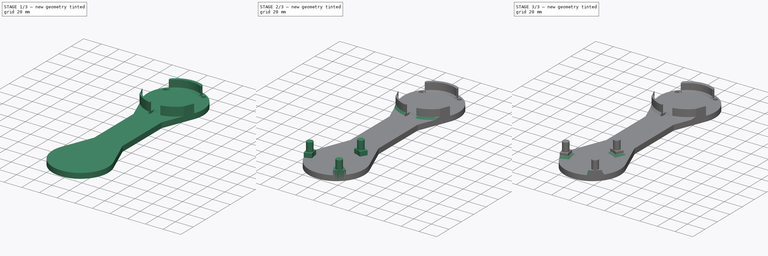
[diagram: build sequence overview — one tinted view per stage of 3, left to right]
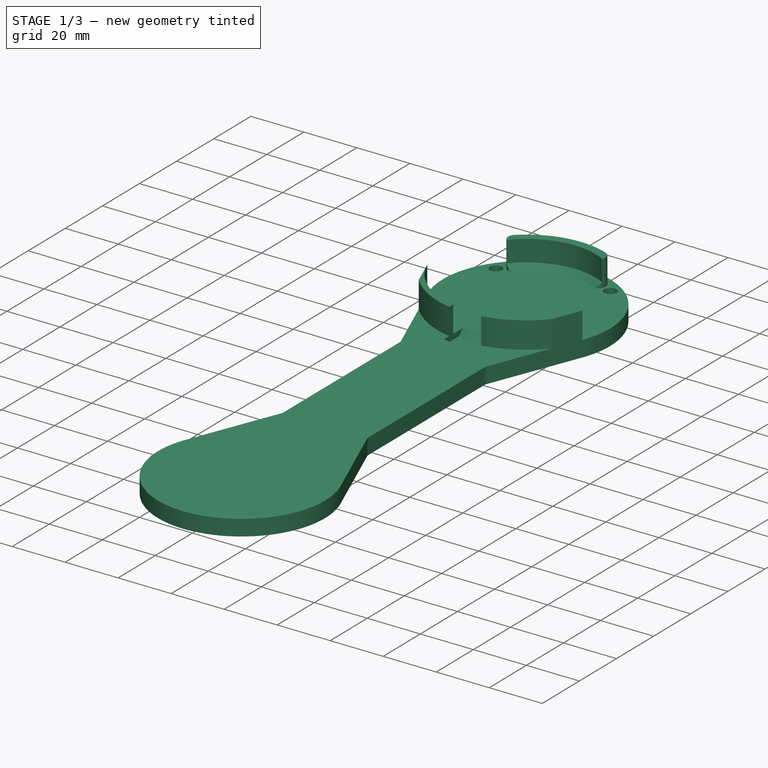
[diagram: stage 1 of 3 — iso view after this stage's code; geometry added in this stage tinted green]
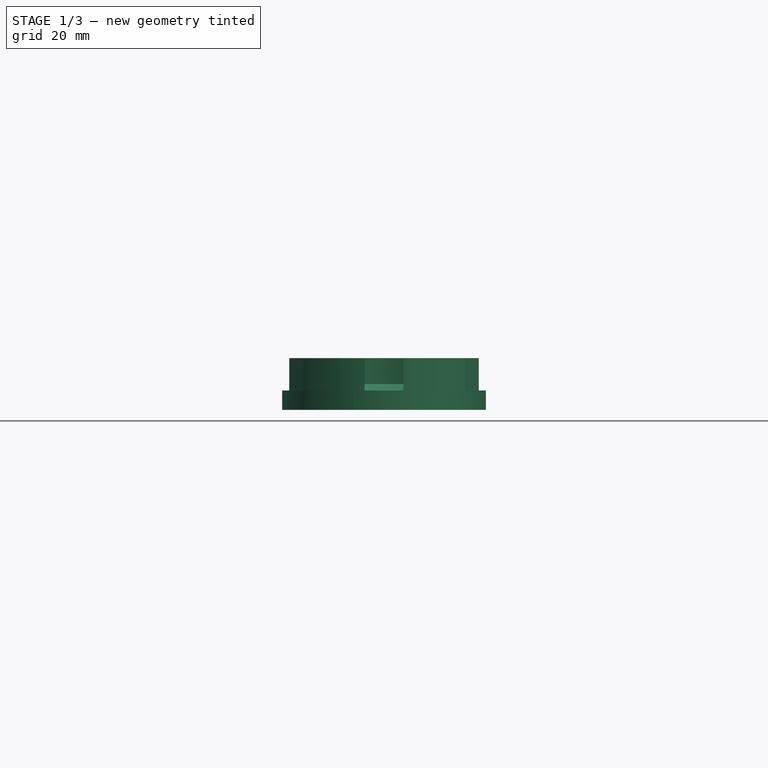
[diagram: stage 1 of 3 — front view after this stage's code; geometry added in this stage tinted green]
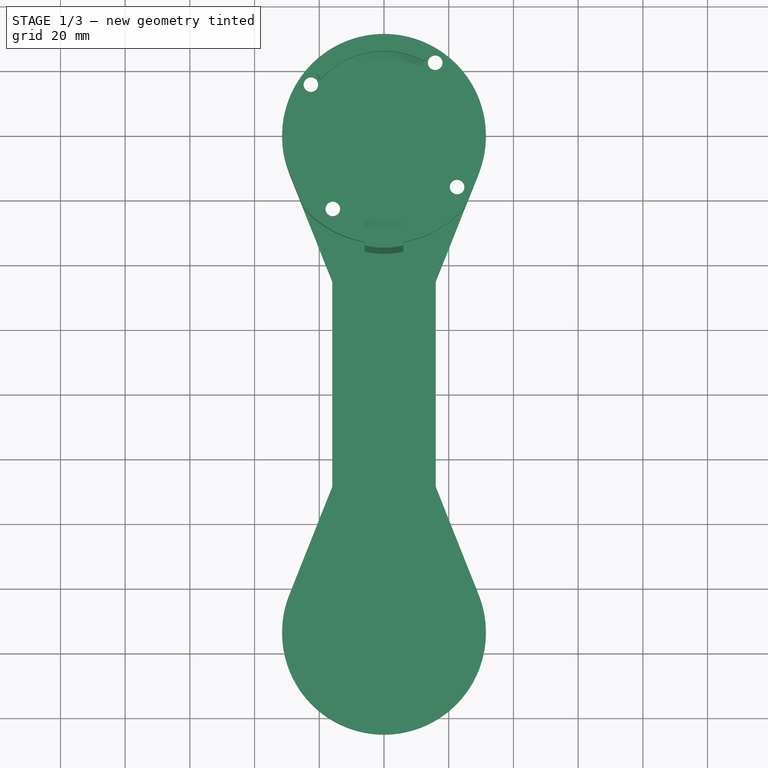
[diagram: stage 1 of 3 — top view after this stage's code; geometry added in this stage tinted green]
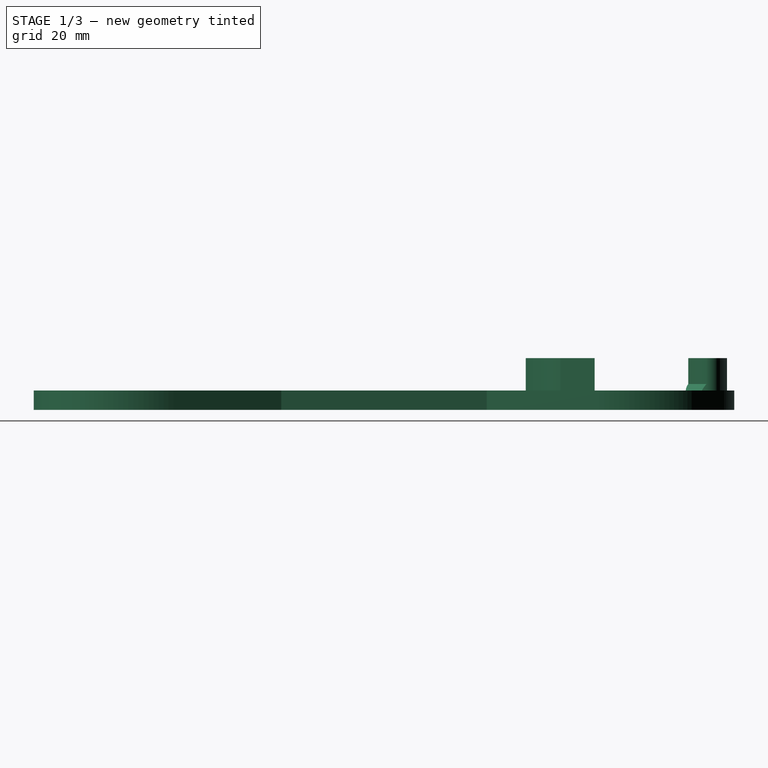
[diagram: stage 1 of 3 — right view after this stage's code; geometry added in this stage tinted green]
FCSTD DOCUMENT  (FreeCAD 1.0R39109 (Git))
Label: LEG Dev Platform
License: All rights reserved
LicenseURL: https://en.wikipedia.org/wiki/All_rights_reserved
objects: Sketcher::SketchObject×9, PartDesign::Chamfer×8, PartDesign::Pad×5, PartDesign::Pocket×3, PartDesign::Body×1, PartDesign::Plane×1
note: 68 computed .brp shape members not serialized (recipe doc carries the construction recipe); baked Part::Feature solids carry a one-line shape summary decoded from their .brp

FEATURE [Sketcher::SketchObject] Sketch
  ArcFitTolerance = 1e-06
  AttachmentSupport = -> [XY_Plane]
  FullyConstrained = true
  MakeInternals = false
  MapMode = 5
  sketch-geometry (20):
    g0: ArcOfCircle CenterX=0 CenterY=0 CenterZ=0 NormalX=0 NormalY=0 NormalZ=1 AngleXU=0 Radius=31.5 StartAngle=5.90458 EndAngle=9.80338
    g1: LineSegment StartX=-29.2692 StartY=-11.6432 StartZ=0 EndX=-16 EndY=-45 EndZ=0
    g2: LineSegment StartX=29.2692 StartY=-11.6432 StartZ=0 EndX=16 EndY=-45 EndZ=0
    g3: LineSegment [constr] StartX=-16 StartY=-45 StartZ=0 EndX=16 EndY=-45 EndZ=0
    g4: LineSegment [constr] StartX=-29.2692 StartY=-11.6432 StartZ=0 EndX=29.2692 EndY=-11.6432 EndZ=0
    g5: LineSegment StartX=-16 StartY=-45 StartZ=0 EndX=-16 EndY=-108.5 EndZ=0
    g6: LineSegment [constr] StartX=-16 StartY=-108.5 StartZ=0 EndX=16 EndY=-108.5 EndZ=0
    g7: LineSegment StartX=16 StartY=-108.5 StartZ=0 EndX=16 EndY=-45 EndZ=0
    g8: Circle [constr] CenterX=0 CenterY=0 CenterZ=0 NormalX=0 NormalY=0 NormalZ=1 AngleXU=0 Radius=27.5772
    g9: Circle CenterX=-22.5899 CenterY=15.8176 CenterZ=0 NormalX=0 NormalY=0 NormalZ=1 AngleXU=0 Radius=2.25
    g10: Circle CenterX=-15.8176 CenterY=-22.5899 CenterZ=0 NormalX=0 NormalY=0 NormalZ=1 AngleXU=0 Radius=2.25
    g11: Circle CenterX=22.5899 CenterY=-15.8176 CenterZ=0 NormalX=0 NormalY=0 NormalZ=1 AngleXU=0 Radius=2.25
    g12: Circle CenterX=15.8176 CenterY=22.5899 CenterZ=0 NormalX=0 NormalY=0 NormalZ=1 AngleXU=0 Radius=2.25
    g13: LineSegment [constr] StartX=-22.5899 StartY=15.8176 StartZ=0 EndX=15.8176 EndY=22.5899 EndZ=0
    g14: LineSegment [constr] StartX=15.8176 StartY=22.5899 StartZ=0 EndX=22.5899 EndY=-15.8176 EndZ=0
    g15: LineSegment [constr] StartX=-15.8176 StartY=-22.5899 StartZ=0 EndX=22.5899 EndY=-15.8176 EndZ=0
    g16: LineSegment [constr] StartX=-15.8176 StartY=-22.5899 StartZ=0 EndX=-22.5899 EndY=15.8176 EndZ=0
    g17: ArcOfCircle CenterX=0 CenterY=-153.5 CenterZ=0 NormalX=0 NormalY=0 NormalZ=1 AngleXU=0 Radius=31.5 StartAngle=2.76299 EndAngle=6.66179
    g18: LineSegment StartX=16 StartY=-108.5 StartZ=0 EndX=29.2692 EndY=-141.857 EndZ=0
    g19: LineSegment StartX=-16 StartY=-108.5 StartZ=0 EndX=-29.2692 EndY=-141.857 EndZ=0
  constraints (49):
    c: Radius(g0) = 31.5
    c: Coincident(g0,g-1)
    c: Coincident(g3,g1)
    c: Coincident(g3,g2)
    c: Horizontal(g3)
    c: Distance(g-1,g3) = 45
    c: Distance(g1,g2) = 32
    c: Coincident(g4,g0)
    c: Coincident(g4,g0)
    c: Horizontal(g4)
    c: Tangent(g1,g0) = -1.5708
    c: Tangent(g2,g0) = 1.5708
    c: Coincident(g5,g1)
    c: Coincident(g6,g5)
    c: Coincident(g7,g6)
    c: Coincident(g7,g2)
    c: Vertical(g7)
    c: Vertical(g5)
    c: Horizontal(g6)
    c: Distance(g6,g3) = 63.5
    c: Coincident(g8,g0)
    c: PointOnObject(g9,g8)
    c: PointOnObject(g10,g8)
    c: PointOnObject(g11,g8)
    c: PointOnObject(g12,g8)
    c: Diameter(g12) = 4.5
    c: Equal(g12,g9)
    c: Equal(g9,g10)
    c: Equal(g10,g11)
    c: Coincident(g14,g12)
    c: Coincident(g14,g11)
    c: Coincident(g16,g10)
    c: Coincident(g16,g9)
    c: Perpendicular(g13,g16)
    c: Coincident(g15,g10)
    c: Perpendicular(g16,g15)
    c: Coincident(g15,g11)
    c: Coincident(g13,g9)
    c: Coincident(g13,g12)
    c: Equal(g16,g13)
    c: Distance(g12,g11) = 39
    c: Angle(g4,g15) = 0.174533
    c: PointOnObject(g17,g-2)
    c: Coincident(g18,g6)
    c: Coincident(g19,g5)
    c: Tangent(g18,g17) = 1.5708
    c: Tangent(g19,g17) = -1.5708
    c: Equal(g0,g17)
    c: Equal(g1,g19)
FEATURE [PartDesign::Pad] Pad
  Direction = (0,0,1)
  Length = 6
  Length2 = 10
  Profile = -> Sketch
  ReferenceAxis = -> Sketch [N_Axis]
  Refine = true
  Suppressed = false
  Type = 0
FEATURE [Sketcher::SketchObject] Sketch001
  ArcFitTolerance = 1e-06
  AttachmentSupport = -> [Pad]
  ExternalGeometry = -> [Pad]
  FullyConstrained = true
  MakeInternals = false
  MapMode = 5
  Placement = pos=(0,0,6) rot=(0,0,1;0rad)
  sketch-geometry (8):
    g0: Circle [constr] CenterX=0 CenterY=0 CenterZ=0 NormalX=0 NormalY=0 NormalZ=1 AngleXU=0 Radius=31.5
    g1: LineSegment StartX=-6 StartY=-25.8118 StartZ=0 EndX=-6 EndY=-35.8118 EndZ=0
    g2: LineSegment StartX=6 StartY=-25.8118 StartZ=0 EndX=6 EndY=-35.8118 EndZ=0
    g3: LineSegment [constr] StartX=0 StartY=-26.5 StartZ=0 EndX=0 EndY=-36.5 EndZ=0
    g4: Circle [constr] CenterX=0 CenterY=0 CenterZ=0 NormalX=0 NormalY=0 NormalZ=1 AngleXU=0 Radius=26.5
    g5: LineSegment [constr] StartX=-6 StartY=-31.5 StartZ=0 EndX=6 EndY=-31.5 EndZ=0
    g6: ArcOfCircle CenterX=5.3e-15 CenterY=-6.2e-15 CenterZ=0 NormalX=0 NormalY=0 NormalZ=1 AngleXU=0 Radius=26.5 StartAngle=4.48399 EndAngle=4.94078
    g7: ArcOfCircle CenterX=8.2e-15 CenterY=-10 CenterZ=0 NormalX=0 NormalY=0 NormalZ=1 AngleXU=0 Radius=26.5 StartAngle=4.48399 EndAngle=4.94078
  constraints (24):
    c: Coincident(g0,g-1)
    c: Vertical(g1)
    c: Vertical(g2)
    c: Symmetric(g2,g1,g-2)
    c: PointOnObject(g3,g-2)
    c: PointOnObject(g3,g-2)
    c: Equal(g2,g3)
    c: Equal(g3,g1)
    c: Coincident(g4,g0)
    c: PointOnObject(g3,g4)
    c: PointOnObject(g2,g4)
    c: Tangent(g5,g0)
    c: Symmetric(g3,g3,g5)
    c: Distance(g0,g4) = 5
    c: Distance(g2,g1) = 12
    c: Coincident(g6,g2)
    c: Coincident(g6,g1)
    c: PointOnObject(g3,g6)
    c: Coincident(g7,g2)
    c: Coincident(g7,g1)
    c: PointOnObject(g3,g7)
    c: PointOnObject(g5,g2)
    c: PointOnObject(g5,g1)
    c: Tangent(g0,g-3)
FEATURE [PartDesign::Pocket] Pocket
  BaseFeature = -> Pad
  Direction = (0,0,-1)
  Length = 2
  Length2 = 5
  Profile = -> Sketch001
  ReferenceAxis = -> Sketch001 [N_Axis]
  Refine = true
  Suppressed = false
  Type = 0
FEATURE [PartDesign::Chamfer] Chamfer
  Angle = 45
  Base = -> Pocket [Edge48,Edge45]
  BaseFeature = -> Pocket
  ChamferType = 0
  FlipDirection = false
  Refine = true
  Size = 1.95
  Size2 = 1
  SupportTransform = false
  Suppressed = false
  UseAllEdges = false
FEATURE [Sketcher::SketchObject] Sketch002
  ArcFitTolerance = 1e-06
  AttachmentSupport = -> [Chamfer]
  ExternalGeometry = -> [Chamfer]
  FullyConstrained = true
  MakeInternals = false
  MapMode = 5
  Placement = pos=(0,0,0) rot=(1,0,0;3.14159rad)
  sketch-geometry (4):
    g0: Circle CenterX=-15.8176 CenterY=22.5899 CenterZ=0 NormalX=0 NormalY=0 NormalZ=1 AngleXU=0 Radius=3.5
    g1: Circle CenterX=22.5899 CenterY=15.8176 CenterZ=0 NormalX=0 NormalY=0 NormalZ=1 AngleXU=0 Radius=3.5
    g2: Circle CenterX=15.8176 CenterY=-22.5899 CenterZ=0 NormalX=0 NormalY=0 NormalZ=1 AngleXU=0 Radius=3.5
    g3: Circle CenterX=-22.5899 CenterY=-15.8176 CenterZ=0 NormalX=0 NormalY=0 NormalZ=1 AngleXU=0 Radius=3.5
  constraints (8):
    c: Diameter(g1) = 7
    c: Equal(g1,g2)
    c: Equal(g2,g3)
    c: Equal(g3,g0)
    c: Coincident(g3,g-6)
    c: Coincident(g0,g-3)
    c: Coincident(g1,g-4)
    c: Coincident(g2,g-5)
FEATURE [PartDesign::Pocket] Pocket001
  BaseFeature = -> Chamfer
  Direction = (0,0,1)
  Length = 4
  Length2 = 5
  Profile = -> Sketch002
  ReferenceAxis = -> Sketch002 [N_Axis]
  Refine = true
  Suppressed = false
  Type = 0
FEATURE [Sketcher::SketchObject] Sketch003
  ArcFitTolerance = 1e-06
  AttachmentSupport = -> [Pocket001]
  ExternalGeometry = -> [Pocket001]
  FullyConstrained = true
  MakeInternals = false
  MapMode = 5
  Placement = pos=(0,0,6) rot=(0,0,1;0rad)
  sketch-geometry (6):
    g0: LineSegment [constr] StartX=-16 StartY=-45 StartZ=0 EndX=16 EndY=-45 EndZ=0
    g1: LineSegment [constr] StartX=16 StartY=-108.5 StartZ=0 EndX=-16 EndY=-108.5 EndZ=0
    g2: LineSegment StartX=-7.75 StartY=-45 StartZ=0 EndX=-7.75 EndY=-108.5 EndZ=0
    g3: LineSegment StartX=-7.75 StartY=-108.5 StartZ=0 EndX=7.75 EndY=-108.5 EndZ=0
    g4: LineSegment StartX=7.75 StartY=-108.5 StartZ=0 EndX=7.75 EndY=-45 EndZ=0
    g5: LineSegment StartX=7.75 StartY=-45 StartZ=0 EndX=-7.75 EndY=-45 EndZ=0
  constraints (15):
    c: Coincident(g0,g-4)
    c: Coincident(g0,g-3)
    c: Coincident(g1,g-5)
    c: Coincident(g1,g-6)
    c: Coincident(g2,g3)
    c: Coincident(g3,g4)
    c: Coincident(g4,g5)
    c: Coincident(g5,g2)
    c: Vertical(g2)
    c: Vertical(g4)
    c: Horizontal(g3)
    c: Distance(g2,g4) = 15.5
    c: PointOnObject(g2,g0)
    c: PointOnObject(g3,g1)
    c: Symmetric(g4,g2,g-2)
FEATURE [Sketcher::SketchObject] Sketch005
  ArcFitTolerance = 1e-06
  AttachmentSupport = -> [Pocket001]
  ExternalGeometry = -> [Pocket001]
  FullyConstrained = true
  MakeInternals = false
  MapMode = 5
  Placement = pos=(0,0,6) rot=(0,0,1;0rad)
  sketch-geometry (17):
    g0: Circle [constr] CenterX=0 CenterY=0 CenterZ=0 NormalX=0 NormalY=0 NormalZ=1 AngleXU=0 Radius=31.5
    g1: ArcOfCircle CenterX=0 CenterY=0 CenterZ=0 NormalX=0 NormalY=0 NormalZ=1 AngleXU=0 Radius=33.5 StartAngle=4.89247 EndAngle=5.55729
    g2: ArcOfCircle CenterX=0 CenterY=0 CenterZ=0 NormalX=0 NormalY=0 NormalZ=1 AngleXU=0 Radius=33.5 StartAngle=3.86749 EndAngle=4.53231
    g3: ArcOfCircle CenterX=0.0741561 CenterY=0.0894991 CenterZ=0 NormalX=0 NormalY=0 NormalZ=1 AngleXU=0 Radius=31.602 StartAngle=3.52196 EndAngle=4.51898
    g4: ArcOfCircle CenterX=0.0741561 CenterY=0.0894991 CenterZ=0 NormalX=0 NormalY=0 NormalZ=1 AngleXU=0 Radius=31.4644 StartAngle=4.90186 EndAngle=5.90107
    g5: LineSegment StartX=-29.2692 StartY=-11.6432 StartZ=0 EndX=-25.0548 EndY=-22.2375 EndZ=0
    g6: LineSegment StartX=-6 StartY=-30.9233 StartZ=0 EndX=-6 EndY=-32.9583 EndZ=0
    g7: LineSegment StartX=6 StartY=-30.8118 StartZ=0 EndX=6 EndY=-32.9583 EndZ=0
    g8: LineSegment StartX=29.2692 StartY=-11.6432 StartZ=0 EndX=25.0548 EndY=-22.2375 EndZ=0
    g9: ArcOfCircle CenterX=0 CenterY=0 CenterZ=0 NormalX=0 NormalY=0 NormalZ=1 AngleXU=0 Radius=29.25 StartAngle=1.18742 EndAngle=2.30324
    g10: ArcOfCircle CenterX=-17.5531 CenterY=19.518 CenterZ=0 NormalX=0 NormalY=0 NormalZ=1 AngleXU=0 Radius=3 StartAngle=2.30324 EndAngle=3.98857
    g11: LineSegment [constr] StartX=0 StartY=0 StartZ=0 EndX=-19.5398 EndY=17.2702 EndZ=0
    g12: ArcOfCircle CenterX=9.81894 CenterY=24.3444 CenterZ=0 NormalX=0 NormalY=0 NormalZ=1 AngleXU=0 Radius=3 StartAngle=5.78527 EndAngle=7.4706
    g13: LineSegment [constr] StartX=12.4547 StartY=22.9116 StartZ=0 EndX=0 EndY=0 EndZ=0
    g14: ArcOfCircle CenterX=0 CenterY=0 CenterZ=0 NormalX=0 NormalY=0 NormalZ=1 AngleXU=0 Radius=26.078 StartAngle=1.07288 EndAngle=2.41778
    g15: LineSegment [constr] StartX=12.6983 StartY=23.5022 StartZ=0 EndX=15.8176 EndY=22.5899 EndZ=0
    g16: LineSegment [constr] StartX=-22.5899 StartY=15.8176 StartZ=0 EndX=-19.9707 EndY=17.7418 EndZ=0
  constraints (44):
    c: Coincident(g0,g-1)
    c: PointOnObject(g-3,g0)
    c: Coincident(g1,g0)
    c: PointOnObject(g1,g-4)
    c: PointOnObject(g1,g-6)
    c: Coincident(g2,g0)
    c: PointOnObject(g2,g-7)
    c: PointOnObject(g2,g-5)
    c: Horizontal(g2,g1)
    c: Distance(g1,g0) = 2
    c: Coincident(g4,g3)
    c: Symmetric(g-4,g-4,g4)
    c: Coincident(g4,g-6)
    c: Coincident(g5,g3)
    c: Coincident(g5,g2)
    c: Coincident(g6,g3)
    c: Coincident(g6,g2)
    c: Vertical(g6)
    c: Coincident(g7,g4)
    c: Coincident(g7,g1)
    c: Coincident(g8,g4)
    c: Coincident(g8,g1)
    c: PointOnObject(g3,g0)
    c: Coincident(g3,g-7)
    c: Coincident(g9,g0)
    c: Distance(g9,g0) = 2.25
    c: Tangent(g10,g9) = -1.5708
    c: Radius(g10) = 3
    c: Coincident(g11,g0)
    c: Tangent(g11,g10) = 1.5708
    c: Tangent(g9,g12) = -1.5708
    c: Coincident(g13,g0)
    c: Tangent(g13,g12) = 1.5708
    c: Coincident(g12,g14)
    c: Coincident(g10,g14)
    c: Coincident(g14,g0)
    c: PointOnObject(g15,g12)
    c: Coincident(g15,g-9)
    c: Perpendicular(g12,g15)
    c: Distance(g15,g15) = 3.25
    c: Coincident(g16,g-8)
    c: PointOnObject(g16,g10)
    c: Perpendicular(g10,g16)
    c: Equal(g15,g16)
FEATURE [PartDesign::Pad] Pad002
  BaseFeature = -> Pocket001
  Direction = (0,0,1)
  Length = 10
  Length2 = 10
  Profile = -> Sketch005
  ReferenceAxis = -> Sketch005 [N_Axis]
  Refine = true
  Suppressed = false
  Type = 0
FEATURE [PartDesign::Chamfer] Chamfer003
  Angle = 45
  Base = -> Pad002 [Edge36]
  BaseFeature = -> Pad002
  ChamferType = 0
  FlipDirection = false
  Refine = true
  Size = 2
  Size2 = 1
  SupportTransform = false
  Suppressed = false
  UseAllEdges = false
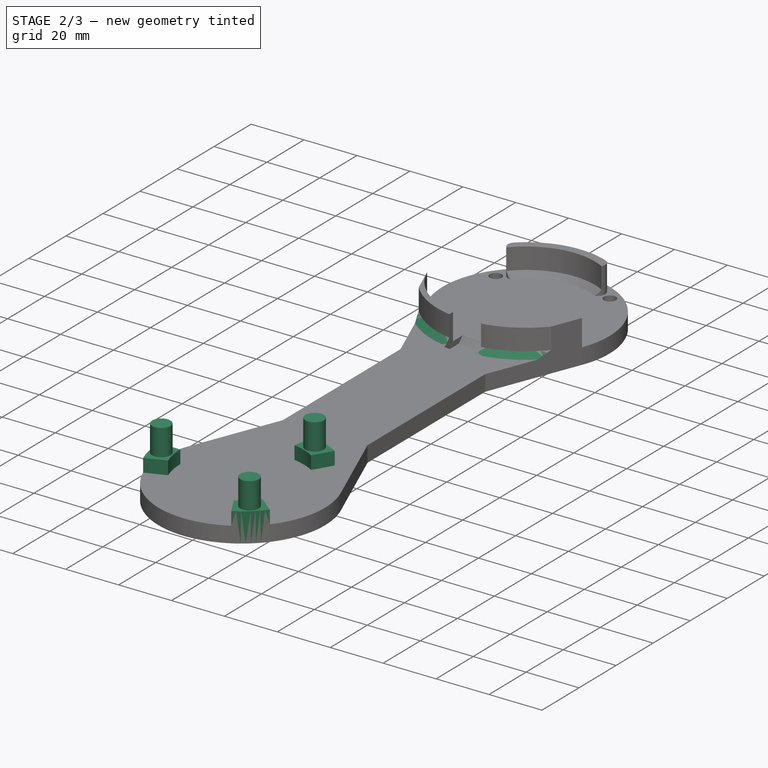
[diagram: stage 2 of 3 — iso view after this stage's code; geometry added in this stage tinted green]
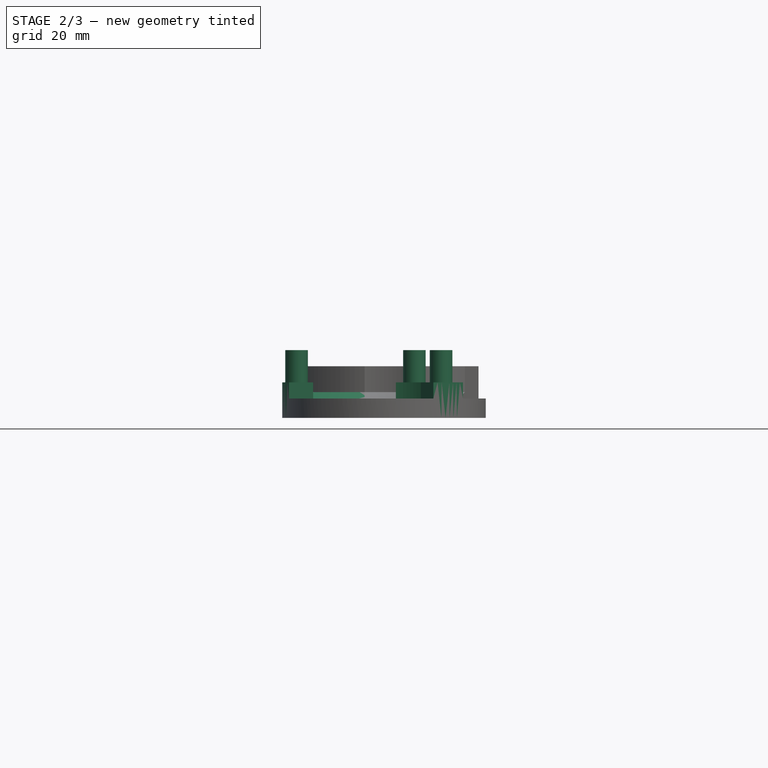
[diagram: stage 2 of 3 — front view after this stage's code; geometry added in this stage tinted green]
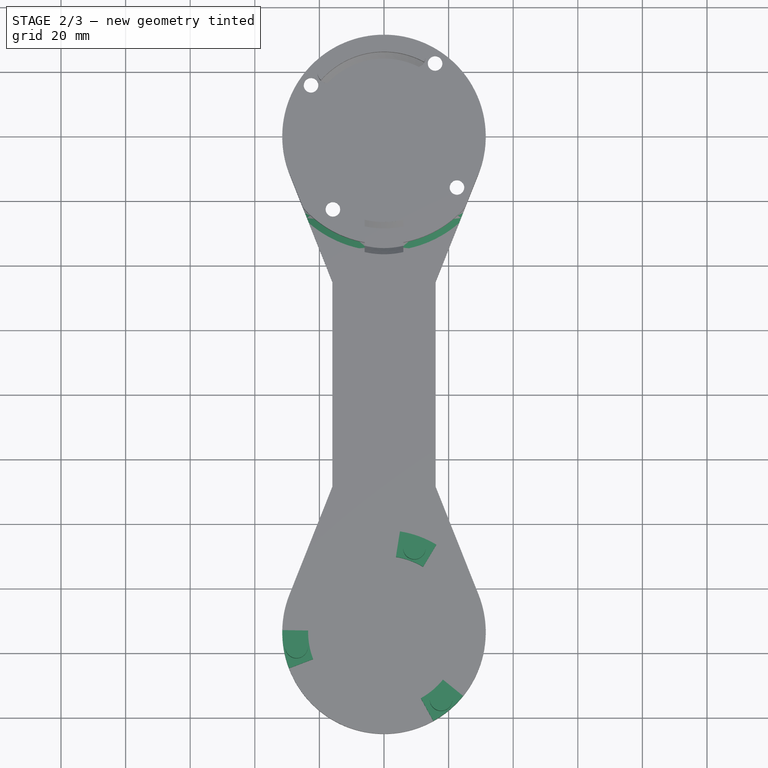
[diagram: stage 2 of 3 — top view after this stage's code; geometry added in this stage tinted green]
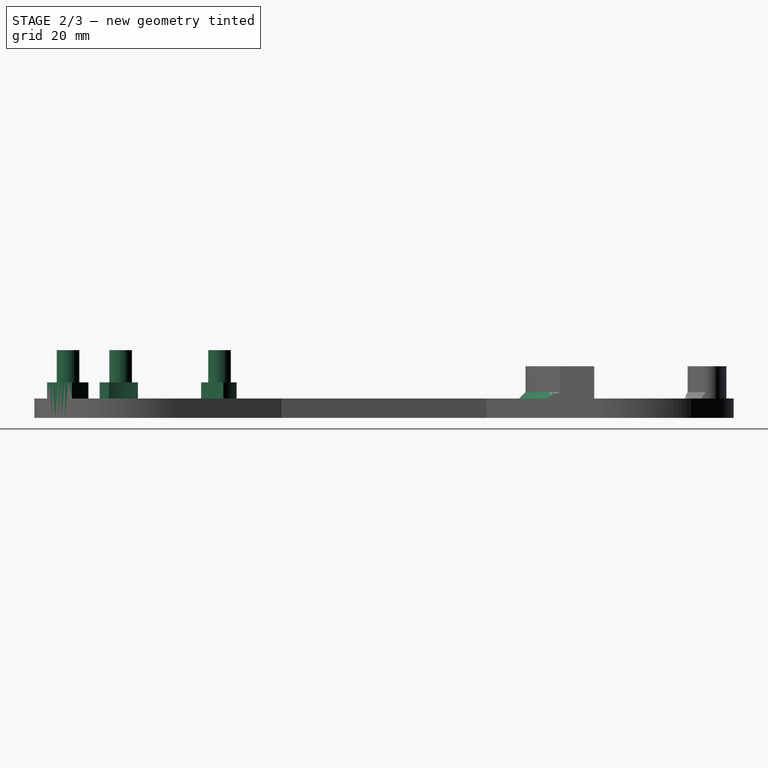
[diagram: stage 2 of 3 — right view after this stage's code; geometry added in this stage tinted green]
FEATURE [PartDesign::Chamfer] Chamfer004
  Angle = 45
  Base = -> Chamfer003 [Edge78,Edge79]
  BaseFeature = -> Chamfer003
  ChamferType = 0
  FlipDirection = false
  Refine = true
  Size = 2
  Size2 = 1
  SupportTransform = false
  Suppressed = false
  UseAllEdges = false
FEATURE [Sketcher::SketchObject] Sketch006
  ArcFitTolerance = 1e-06
  AttachmentSupport = -> [Chamfer004]
  ExternalGeometry = -> [Chamfer004]
  FullyConstrained = true
  MakeInternals = false
  MapMode = 5
  Placement = pos=(0,0,6) rot=(0,0,1;0rad)
  sketch-geometry (9):
    g0: Circle [constr] CenterX=0 CenterY=-153.5 CenterZ=0 NormalX=0 NormalY=0 NormalZ=1 AngleXU=0 Radius=31.5
    g1: Circle [constr] CenterX=0 CenterY=-153.5 CenterZ=0 NormalX=0 NormalY=0 NormalZ=1 AngleXU=0 Radius=27.5
    g2: Circle CenterX=17.6767 CenterY=-174.566 CenterZ=0 NormalX=0 NormalY=0 NormalZ=1 AngleXU=0 Radius=3.5
    g3: Circle CenterX=-27.0822 CenterY=-158.275 CenterZ=0 NormalX=0 NormalY=0 NormalZ=1 AngleXU=0 Radius=3.5
    g4: Circle CenterX=9.40555 CenterY=-127.658 CenterZ=0 NormalX=0 NormalY=0 NormalZ=1 AngleXU=0 Radius=3.5
    g5: LineSegment [constr] StartX=9.40555 StartY=-127.658 StartZ=0 EndX=17.6767 EndY=-174.566 EndZ=0
    g6: LineSegment [constr] StartX=17.6767 StartY=-174.566 StartZ=0 EndX=-27.0822 EndY=-158.275 EndZ=0
    g7: LineSegment [constr] StartX=-27.0822 StartY=-158.275 StartZ=0 EndX=9.40555 EndY=-127.658 EndZ=0
    g8: LineSegment [constr] StartX=0 StartY=-153.5 StartZ=0 EndX=9.40555 EndY=-127.658 EndZ=0
  constraints (21):
    c: Coincident(g0,g-3)
    c: Equal(g0,g-3)
    c: Coincident(g1,g0)
    c: Diameter(g2) = 7
    c: PointOnObject(g2,g1)
    c: Equal(g2,g4)
    c: Equal(g4,g3)
    c: PointOnObject(g4,g1)
    c: PointOnObject(g3,g1)
    c: Coincident(g5,g4)
    c: Coincident(g5,g2)
    c: Coincident(g6,g2)
    c: Coincident(g6,g3)
    c: Coincident(g7,g3)
    c: Coincident(g7,g4)
    c: Equal(g5,g6)
    c: Equal(g6,g7)
    c: Distance(g4,g0) = 4
    c: Coincident(g8,g0)
    c: Coincident(g8,g4)
    c: Angle(g8,g-2) = 0.349066
FEATURE [PartDesign::Pad] Pad003
  BaseFeature = -> Chamfer004
  Direction = (0,0,1)
  Length = 15
  Length2 = 10
  Profile = -> Sketch006
  ReferenceAxis = -> Sketch006 [N_Axis]
  Refine = true
  Suppressed = false
  Type = 0
FEATURE [Sketcher::SketchObject] Sketch007
  ArcFitTolerance = 1e-06
  AttachmentSupport = -> [Pad003]
  ExternalGeometry = -> [Pad003]
  FullyConstrained = true
  MakeInternals = false
  MapMode = 5
  Placement = pos=(0,0,6) rot=(0,0,1;0rad)
  sketch-geometry (20):
    g0: Circle [constr] CenterX=0 CenterY=-153.5 CenterZ=0 NormalX=0 NormalY=0 NormalZ=1 AngleXU=0 Radius=31.5
    g1: Circle [constr] CenterX=0 CenterY=-153.5 CenterZ=0 NormalX=0 NormalY=0 NormalZ=1 AngleXU=0 Radius=23.5
    g2: LineSegment StartX=4.93823 StartY=-122.389 StartZ=0 EndX=3.68408 EndY=-130.291 EndZ=0
    g3: LineSegment StartX=12.0966 StartY=-133.352 StartZ=0 EndX=16.2145 EndY=-126.494 EndZ=0
    g4: LineSegment [constr] StartX=9.40555 StartY=-127.658 StartZ=0 EndX=16.2145 EndY=-126.494 EndZ=0
    g5: LineSegment [constr] StartX=9.40555 StartY=-127.658 StartZ=0 EndX=4.93823 EndY=-122.389 EndZ=0
    g6: ArcOfCircle CenterX=0 CenterY=-153.5 CenterZ=0 NormalX=0 NormalY=0 NormalZ=1 AngleXU=0 Radius=31.5 StartAngle=1.03008 EndAngle=1.41338
    g7: ArcOfCircle CenterX=0 CenterY=-153.5 CenterZ=0 NormalX=0 NormalY=0 NormalZ=1 AngleXU=0 Radius=23.5 StartAngle=1.03008 EndAngle=1.41338
    g8: LineSegment StartX=24.4734 StartY=-173.332 StartZ=0 EndX=18.2579 EndY=-168.295 EndZ=0
    g9: LineSegment StartX=15.2808 StartY=-181.045 StartZ=0 EndX=11.4 EndY=-174.05 EndZ=0
    g10: LineSegment [constr] StartX=17.6767 StartY=-174.566 StartZ=0 EndX=24.4734 EndY=-173.332 EndZ=0
    g11: LineSegment [constr] StartX=17.6767 StartY=-174.566 StartZ=0 EndX=15.2808 EndY=-181.045 EndZ=0
    g12: ArcOfCircle CenterX=0 CenterY=-153.5 CenterZ=0 NormalX=0 NormalY=0 NormalZ=1 AngleXU=0 Radius=23.5 StartAngle=5.21887 EndAngle=5.60217
    g13: ArcOfCircle CenterX=9.67e-14 CenterY=-153.5 CenterZ=0 NormalX=0 NormalY=0 NormalZ=1 AngleXU=0 Radius=31.5 StartAngle=5.21887 EndAngle=5.60217
    g14: LineSegment StartX=-23.4966 StartY=-153.098 StartZ=0 EndX=-31.4954 EndY=-152.961 EndZ=0
    g15: LineSegment StartX=-21.942 StartY=-161.914 StartZ=0 EndX=-29.4116 EndY=-164.779 EndZ=0
    g16: LineSegment [constr] StartX=-27.0822 StartY=-158.275 StartZ=0 EndX=-31.4954 EndY=-152.961 EndZ=0
    g17: LineSegment [constr] StartX=-27.0822 StartY=-158.275 StartZ=0 EndX=-29.4116 EndY=-164.779 EndZ=0
    g18: ArcOfCircle CenterX=9.67e-14 CenterY=-153.5 CenterZ=0 NormalX=0 NormalY=0 NormalZ=1 AngleXU=0 Radius=23.5 StartAngle=3.12448 EndAngle=3.50777
    g19: ArcOfCircle CenterX=0 CenterY=-153.5 CenterZ=0 NormalX=0 NormalY=0 NormalZ=1 AngleXU=0 Radius=31.5 StartAngle=3.12448 EndAngle=3.50777
  constraints (54):
    c: Coincident(g0,g-6)
    c: PointOnObject(g-6,g0)
    c: Coincident(g1,g0)
    c: Distance(g1,g0) = 8
    c: PointOnObject(g2,g0)
    c: PointOnObject(g2,g1)
    c: PointOnObject(g3,g1)
    c: Perpendicular(g1,g3)
    c: Perpendicular(g1,g2)
    c: Coincident(g4,g-3)
    c: Coincident(g4,g3)
    c: Coincident(g5,g4)
    c: Coincident(g5,g2)
    c: Equal(g4,g5)
    c: Coincident(g6,g0)
    c: Coincident(g6,g2)
    c: Coincident(g6,g3)
    c: Coincident(g3,g7)
    c: Coincident(g7,g2)
    c: Distance(g2,g3) = 12
    c: PointOnObject(g7,g-2)
    c: PointOnObject(g8,g0)
    c: PointOnObject(g8,g1)
    c: PointOnObject(g9,g0)
    c: Perpendicular(g1,g9)
    c: Perpendicular(g1,g8)
    c: Coincident(g10,g-5)
    c: Coincident(g10,g8)
    c: Coincident(g11,g10)
    c: Coincident(g11,g9)
    c: Equal(g10,g11)
    c: Coincident(g12,g7)
    c: Coincident(g12,g8)
    c: Coincident(g12,g9)
    c: Coincident(g13,g8)
    c: Coincident(g13,g9)
    c: Equal(g6,g13)
    c: Distance(g9,g8) = 12
    c: PointOnObject(g14,g1)
    c: PointOnObject(g14,g0)
    c: Perpendicular(g1,g15)
    c: Perpendicular(g1,g14)
    c: Coincident(g16,g-4)
    c: Coincident(g16,g14)
    c: Coincident(g17,g16)
    c: Coincident(g17,g15)
    c: Equal(g17,g16)
    c: Coincident(g18,g13)
    c: Coincident(g18,g15)
    c: Coincident(g18,g14)
    c: Coincident(g15,g19)
    c: Coincident(g19,g0)
    c: Coincident(g19,g14)
    c: Distance(g14,g15) = 12
FEATURE [PartDesign::Pad] Pad004
  BaseFeature = -> Pad003
  Direction = (0,0,1)
  Length = 5
  Length2 = 10
  Profile = -> Sketch007
  ReferenceAxis = -> Sketch007 [N_Axis]
  Refine = true
  Suppressed = false
  Type = 0
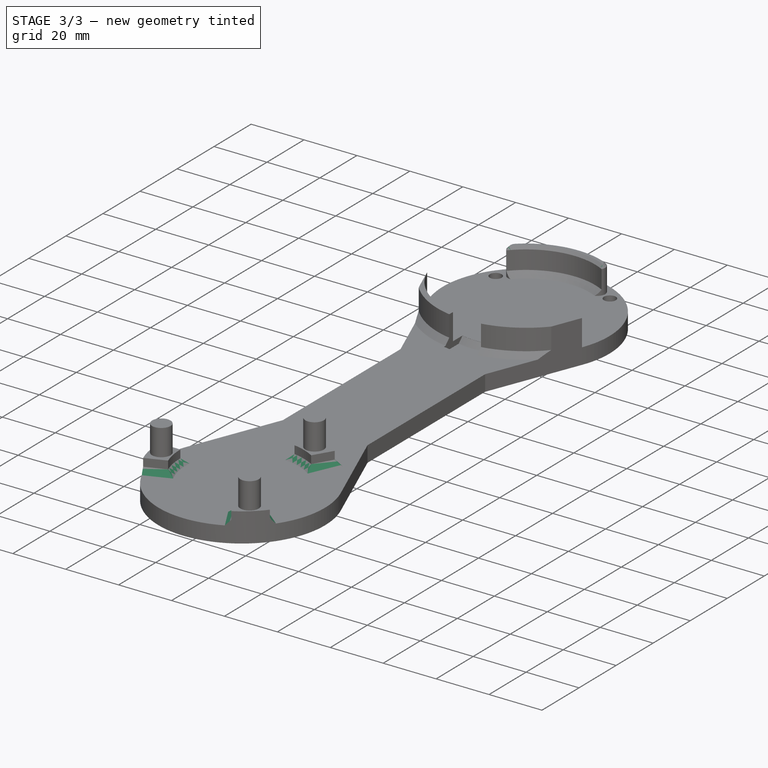
[diagram: stage 3 of 3 — iso view after this stage's code; geometry added in this stage tinted green]
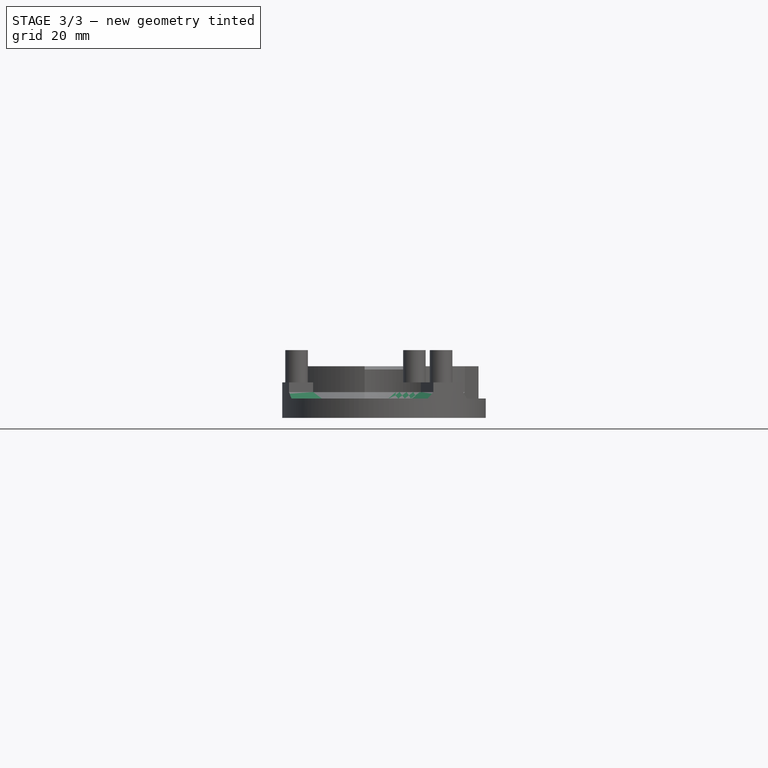
[diagram: stage 3 of 3 — front view after this stage's code; geometry added in this stage tinted green]
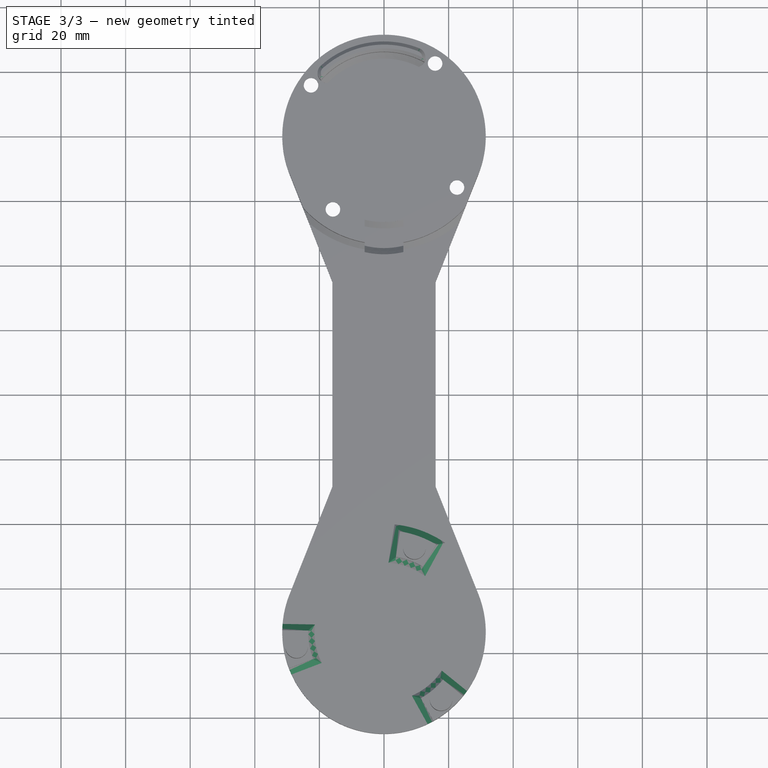
[diagram: stage 3 of 3 — top view after this stage's code; geometry added in this stage tinted green]
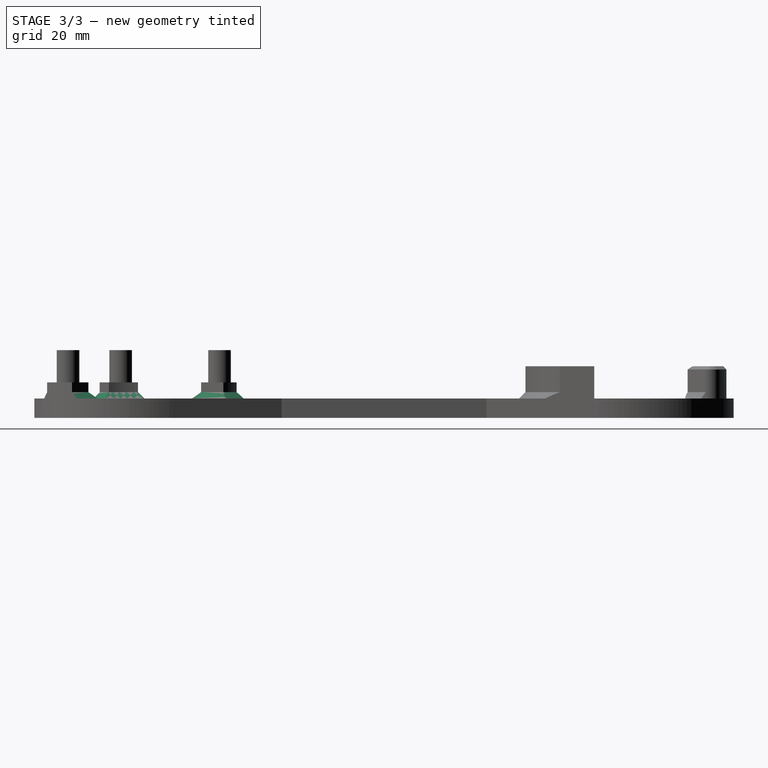
[diagram: stage 3 of 3 — right view after this stage's code; geometry added in this stage tinted green]
FEATURE [PartDesign::Chamfer] Chamfer005
  Angle = 45
  Base = -> Pad004 [Edge142,Edge120,Edge118,Edge113]
  BaseFeature = -> Pad004
  ChamferType = 0
  FlipDirection = false
  Refine = true
  Size = 1
  Size2 = 1
  SupportTransform = false
  Suppressed = false
  UseAllEdges = false
FEATURE [PartDesign::Chamfer] Chamfer006
  Angle = 45
  Base = -> Chamfer005 [Edge86,Edge87,Edge96,Edge99,Edge97,Edge82,Edge83,Edge98,Edge88,Edge84]
  BaseFeature = -> Chamfer005
  ChamferType = 0
  FlipDirection = false
  Refine = true
  Size = 2
  Size2 = 1
  SupportTransform = false
  Suppressed = false
  UseAllEdges = false
FEATURE [Sketcher::SketchObject] Sketch008
  ArcFitTolerance = 1e-06
  AttachmentSupport = -> [XY_Plane]
  FullyConstrained = true
  MakeInternals = false
  MapMode = 5
FEATURE [PartDesign::Body] Body
  AllowCompound = false
  Group = -> [Sketch,Pad,Sketch001,Pocket,Chamfer,Sketch002,Pocket001,Sketch003,Sketch005,Pad002,Chamfer003,Chamfer004,Sketch006,Pad003,Sketch007,Pad004,Chamfer005,Chamfer006,Sketch008,Chamfer007,Pocket002,DatumPlane,Sketch004,Pad001,Chamfer001,Chamfer002]
  Origin = -> Origin
  Tip = -> Chamfer007
FEATURE [PartDesign::Pocket] Pocket002
  BaseFeature = -> Chamfer007
  Direction = (0,0,-1)
  Length = 3
  Length2 = 5
  Profile = -> Sketch003
  ReferenceAxis = -> Sketch003 [N_Axis]
  Refine = true
  Suppressed = false
  Type = 0
FEATURE [PartDesign::Plane] DatumPlane
  AttachmentSupport = -> [Pocket002]
  Length = 237.309
  MapMode = 5
  Placement = pos=(-7.75,0,0) rot=(0.57735,-0.57735,-0.57735;2.0944rad)
  ResizeMode = 0
  Width = 70.8087
FEATURE [Sketcher::SketchObject] Sketch004
  ArcFitTolerance = 1e-06
  AttachmentSupport = -> [DatumPlane]
  ExternalGeometry = -> [Pocket002]
  FullyConstrained = true
  MakeInternals = false
  MapMode = 5
  Placement = pos=(-7.75,0,0) rot=(0.57735,-0.57735,-0.57735;2.0944rad)
  sketch-geometry (16):
    g0: LineSegment StartX=-108.5 StartY=6 StartZ=0 EndX=-99 EndY=6 EndZ=0
    g1: LineSegment StartX=-108.5 StartY=6 StartZ=0 EndX=-108.5 EndY=16 EndZ=0
    g2: LineSegment StartX=-108.5 StartY=16 StartZ=0 EndX=-103 EndY=16 EndZ=0
    g3: LineSegment StartX=-99 StartY=6 StartZ=0 EndX=-99 EndY=12 EndZ=0
    g4: ArcOfCircle CenterX=-103 CenterY=12 CenterZ=0 NormalX=0 NormalY=0 NormalZ=1 AngleXU=0 Radius=4 StartAngle=0 EndAngle=1.5708
    g5: Circle CenterX=-103 CenterY=12 CenterZ=0 NormalX=0 NormalY=0 NormalZ=1 AngleXU=0 Radius=2.25
    g6: LineSegment [constr] StartX=-103 StartY=16 StartZ=0 EndX=-103 EndY=12 EndZ=0
    g7: LineSegment [constr] StartX=-103 StartY=12 StartZ=0 EndX=-99 EndY=12 EndZ=0
    g8: LineSegment StartX=-45 StartY=6 StartZ=0 EndX=-45 EndY=16 EndZ=0
    g9: LineSegment StartX=-45 StartY=16 StartZ=0 EndX=-50.5 EndY=16 EndZ=0
    g10: LineSegment StartX=-45 StartY=6 StartZ=0 EndX=-54.5 EndY=6 EndZ=0
    g11: LineSegment StartX=-54.5 StartY=6 StartZ=0 EndX=-54.5 EndY=12 EndZ=0
    g12: ArcOfCircle CenterX=-50.5 CenterY=12 CenterZ=0 NormalX=0 NormalY=0 NormalZ=1 AngleXU=0 Radius=4 StartAngle=1.5708 EndAngle=3.14159
    g13: Circle CenterX=-50.5 CenterY=12 CenterZ=0 NormalX=0 NormalY=0 NormalZ=1 AngleXU=0 Radius=2.25
    g14: LineSegment [constr] StartX=-50.5 StartY=12 StartZ=0 EndX=-50.5 EndY=16 EndZ=0
    g15: LineSegment [constr] StartX=-50.5 StartY=12 StartZ=0 EndX=-54.5 EndY=12 EndZ=0
  constraints (42):
    c: Distance(g0) = 9.5
    c: Horizontal(g0)
    c: Coincident(g1,g0)
    c: Vertical(g1)
    c: Coincident(g2,g1)
    c: Horizontal(g2)
    c: Coincident(g3,g0)
    c: Vertical(g3)
    c: Coincident(g4,g2)
    c: Coincident(g4,g3)
    c: Coincident(g5,g4)
    c: Coincident(g6,g2)
    c: Coincident(g6,g4)
    c: Coincident(g7,g4)
    c: Coincident(g7,g3)
    c: Vertical(g6)
    c: Horizontal(g7)
    c: Diameter(g5) = 4.5
    c: Coincident(g0,g-3)
    c: Coincident(g8,g-4)
    c: Vertical(g8)
    c: Coincident(g9,g8)
    c: Horizontal(g9)
    c: Coincident(g10,g8)
    c: Horizontal(g10)
    c: Coincident(g11,g10)
    c: Vertical(g11)
    c: Coincident(g12,g9)
    c: Coincident(g12,g11)
    c: Coincident(g13,g12)
    c: Coincident(g14,g12)
    c: Coincident(g14,g9)
    c: Coincident(g15,g12)
    c: Coincident(g15,g11)
    c: Vertical(g14)
    c: Horizontal(g15)
    c: Equal(g1,g8)
    c: Equal(g10,g0)
    c: Equal(g6,g14)
    c: Equal(g13,g5)
    c: DistanceX(g4,g3) = 4
    c: Distance(g3,g-5) = 9
FEATURE [PartDesign::Pad] Pad001
  BaseFeature = -> Pocket002
  Direction = (-1,0,0)
  Length = 4
  Length2 = 10
  Profile = -> Sketch004
  ReferenceAxis = -> Sketch004 [N_Axis]
  Refine = true
  Reversed = true
  Suppressed = false
  Type = 0
FEATURE [PartDesign::Chamfer] Chamfer001
  Angle = 45
  Base = -> Pad001 [?Edge26,?Edge27,?Edge30,?Edge31,?Edge29,?Edge25]
  BaseFeature = -> Pad001
  ChamferType = 0
  FlipDirection = false
  Refine = true
  Size = 1.75
  Size2 = 1
  SupportTransform = false
  Suppressed = false
  UseAllEdges = false
FEATURE [PartDesign::Chamfer] Chamfer002
  Angle = 45
  Base = -> Chamfer001 [Edge143,Edge152]
  BaseFeature = -> Chamfer001
  ChamferType = 0
  FlipDirection = false
  Refine = true
  Size = 0.75
  Size2 = 1
  SupportTransform = false
  Suppressed = false
  UseAllEdges = false
FEATURE [PartDesign::Chamfer] Chamfer007
  Angle = 45
  Base = -> Chamfer002 [Edge39]
  BaseFeature = -> Chamfer002
  ChamferType = 0
  FlipDirection = false
  Refine = true
  Size = 1
  Size2 = 1
  SupportTransform = false
  Suppressed = false
  UseAllEdges = false
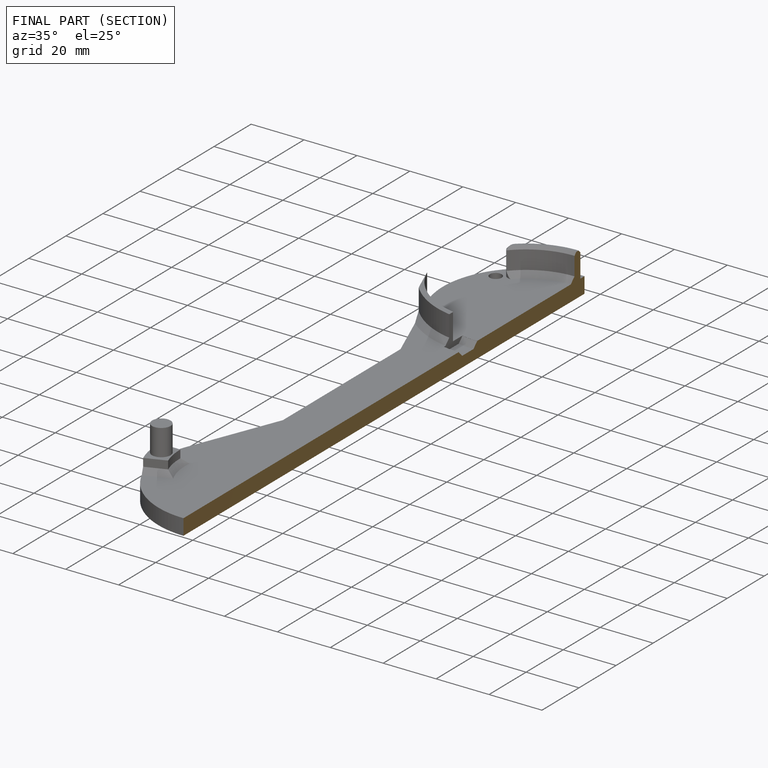
[diagram: finished part — half-section view (interior)]
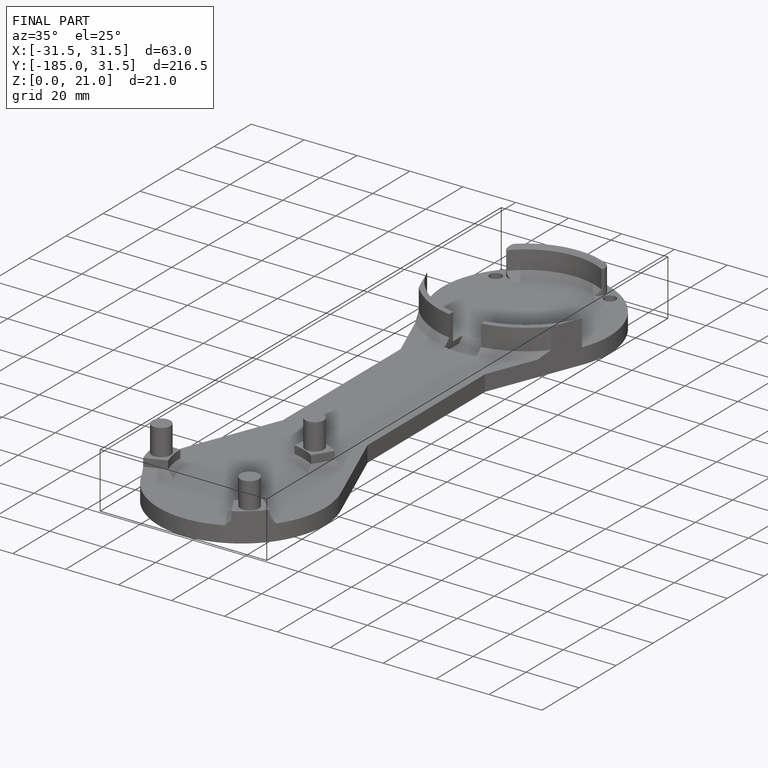
[diagram: finished part — iso view with bounding-box wireframe]
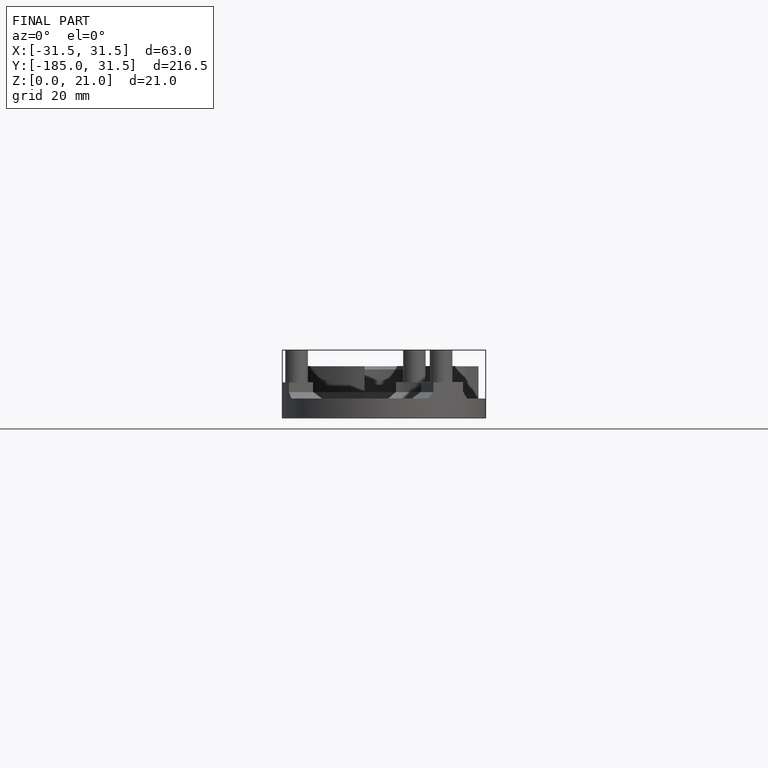
[diagram: finished part — front view with bounding-box wireframe]
